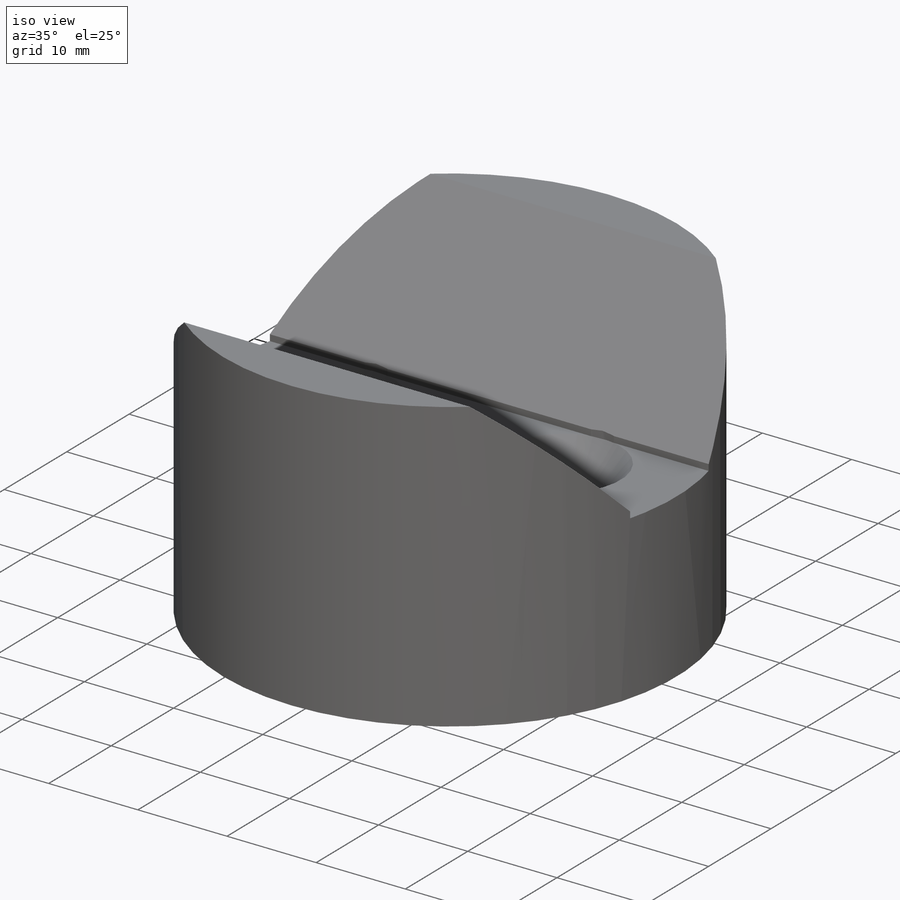
[diagram: iso view]
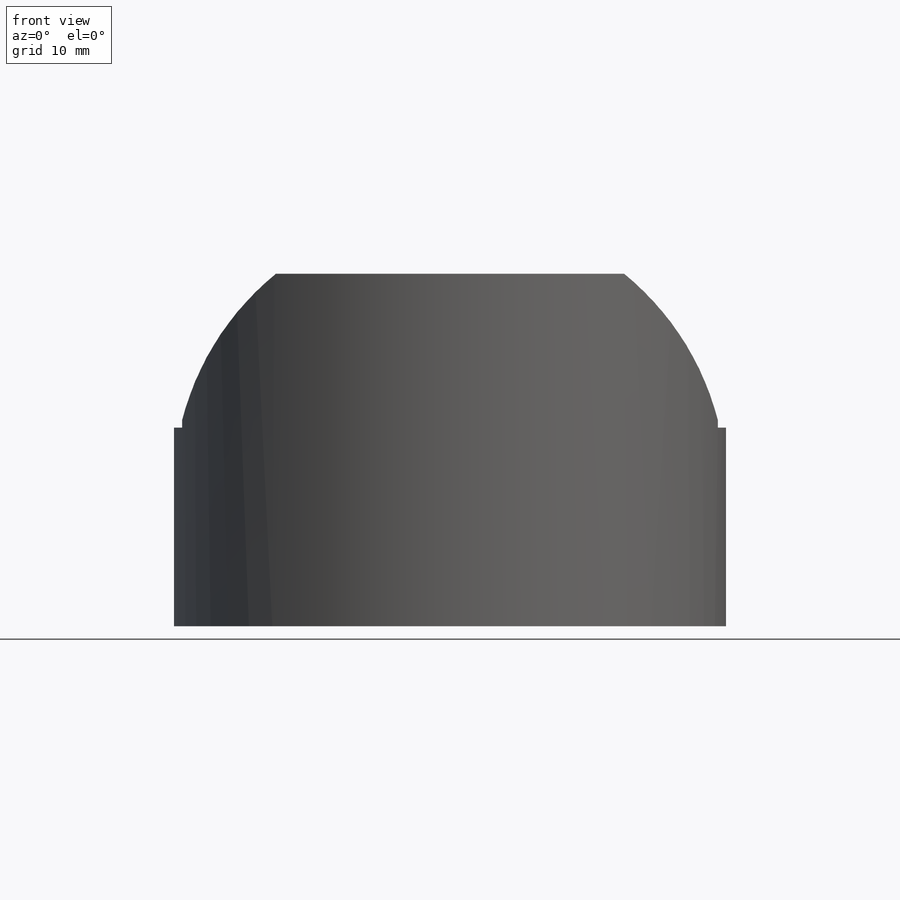
[diagram: front view]
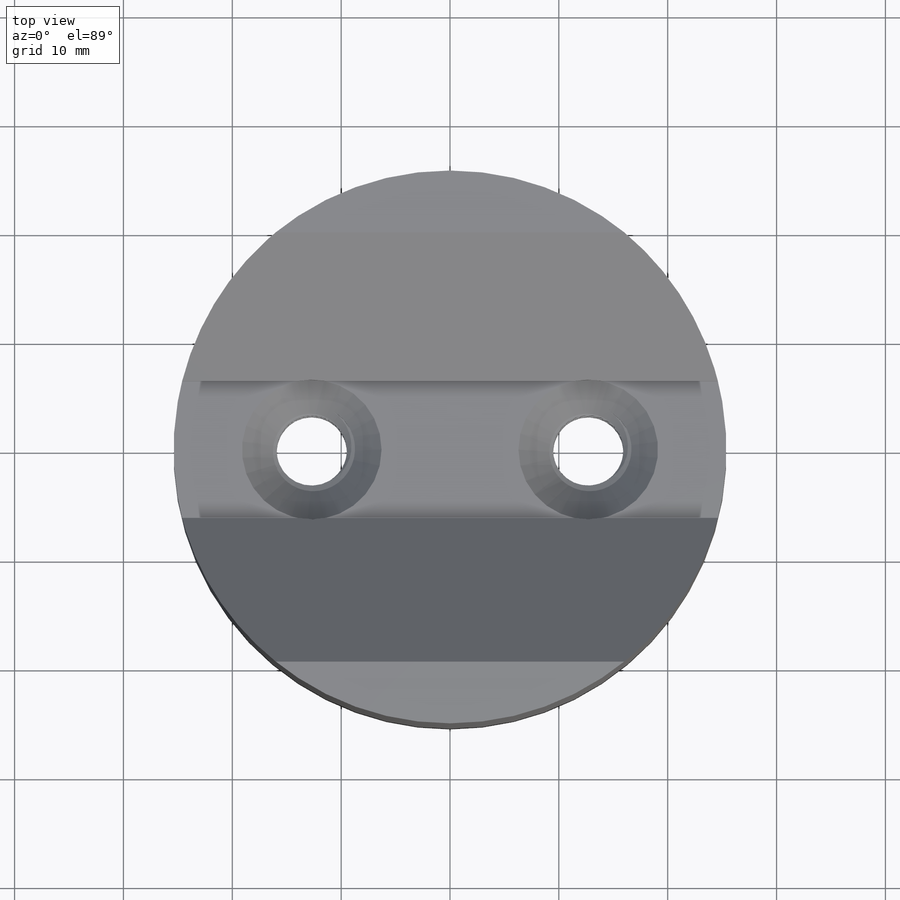
[diagram: top view]
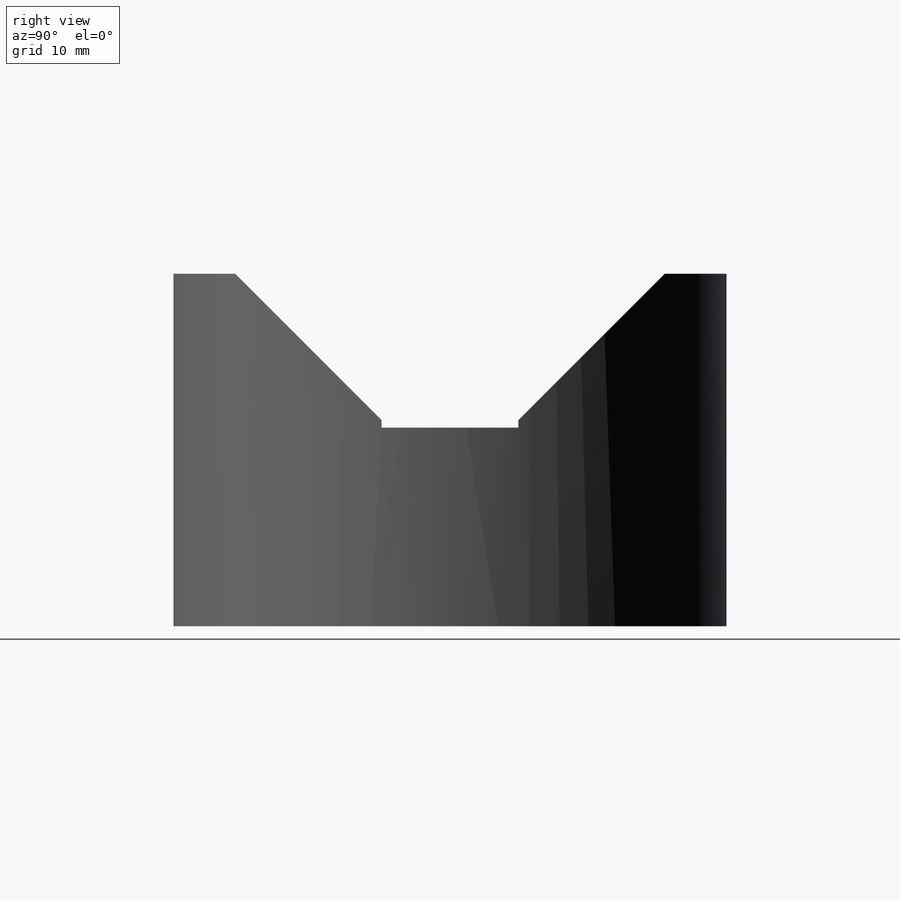
[diagram: right view]
SOLIDWORKS PART (.sldprt)
format: sldprt  version: not decoded by parser v0  size: 798,208 bytes
history: native  units: mm
features: sketch x7, plane x3, cut_extrude x3, material x1, extrude x1, chamfer x1, cut_revolve x1, mirror x1, helix x1, sweep x1, pattern_linear x1 + 2 further entries (+9 scaffold rows collapsed)
feature tree (32):
  scaffold x9  (default folders/planes/origin — collapsed)
  material  "Material <not specified>"
  plane  "Plane X-Y"
  plane  "Plane X-Z"
  plane  "Plane Y-Z"
  "Axis - Y"
  "Axis - Z"
  sketch  "Sketch1"  dims[D1=50.8mm]
  extrude  "Extrude1"  Depth=32.385mm
  sketch  "Sketch3"  dims[c1.D4=50.8mm c1.D5=50.8mm c1.D1=~39.457049mm c1.D2=18.2245mm c1.D3=12.573mm c2.D5=73.9775mm c2.D6=18.2499mm c2.D2=~3.740902mm]
  cut_extrude  "Cut-Extrude1"  [1 undecoded]
  sketch  "Sketch6"  dims[D1=28.575mm]
  cut_extrude  "Cut-Extrude2"  Depth=1.016mm
  chamfer  "Chamfer2"  Distance=1.016mm Angle=45deg
  sketch  "Sketch7"  dims[c1.D1=~23.299449mm c2.D1=41.0deg c2.D2=12.827mm c2.D3=6.477mm c2.D4=12.7mm c2.D5=2.54mm c2.D6=~3.103117mm c3.D6=45.0deg c3.D7=8.89mm]
  cut_revolve  "Cut-Revolve1"  Angle=360deg
  mirror  "Mirror1"
  sketch  "Sketch8"  dims[D1=~0.79375mm]
  cut_extrude  "Cut-Extrude3"  Depth=0.127mm
  sketch  "Sketch10"
  helix  "Helix/Spiral1"  Pitch=19.05mm
  sketch  "Sketch9"  dims[c1.D3=0.0762mm c1.D1=~1.02314mm c2.D1=60.0deg c2.D2=8.128mm c2.D4=~1.041193mm]
  sweep  "Cut-Sweep1"
  pattern_linear  "LPattern1"  Count1=2 Count2=1 Spacing1=25.4mm Spacing2=50mm
decode coverage: 13 of 17 modeling features carry decoded parameters; 2 rows unclassified (native names shown)
note: ~ marks probable driven/reference dimensions
note: 1 parameter value undecoded
note: suppression state not decoded; provenance and decode notes live in map.json
